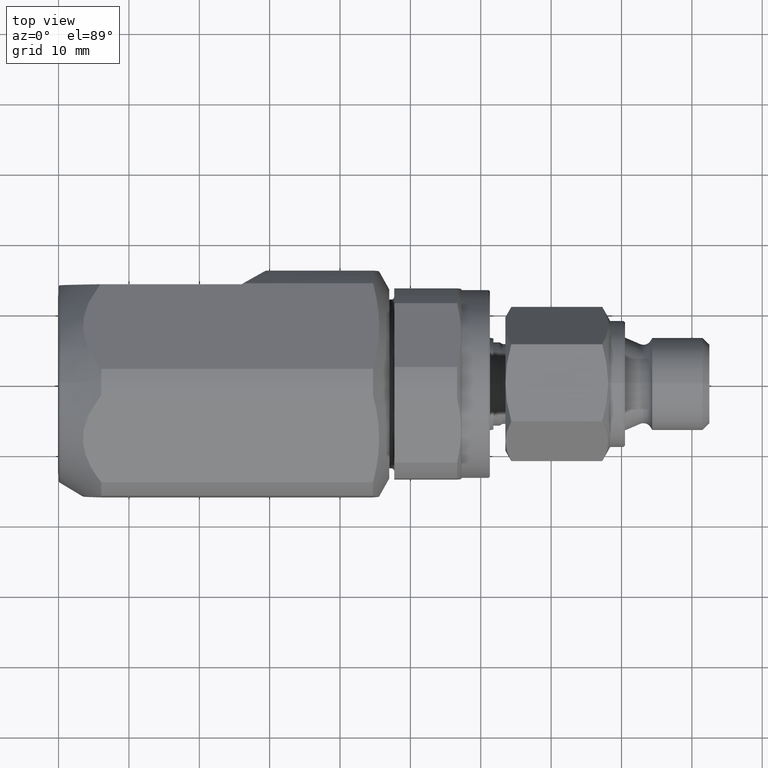
[diagram: clean part render]
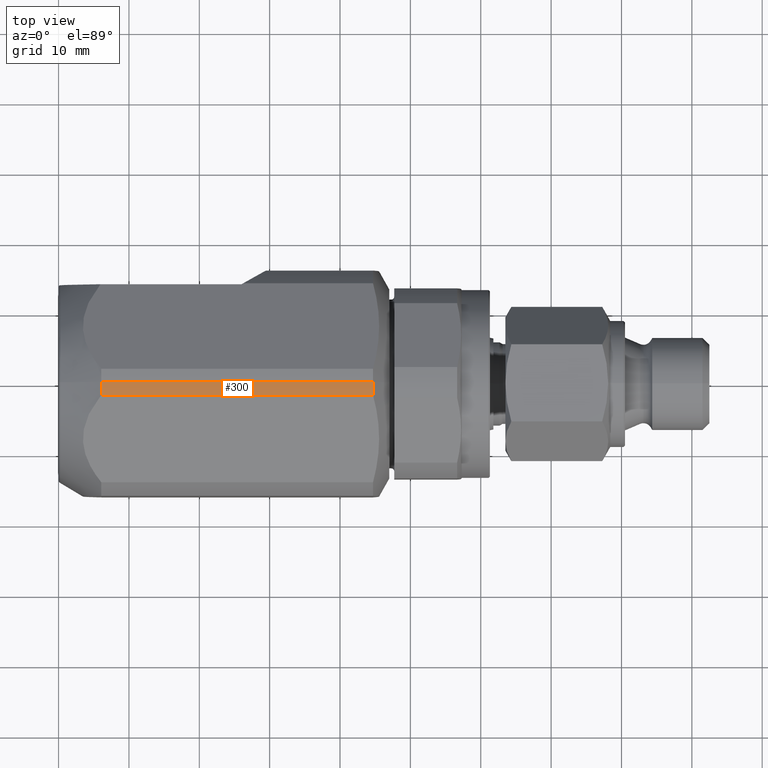
[diagram: same view with one face highlighted and labeled with its STEP entity id]
A machine part, top view. The second image highlights one B-rep face of the part: STEP entity #300.
In plain terms, the highlighted cylindrical surface (partial cylindrical patch) has radius 17.5 mm, axis along (-1, 0, 0).
Its self-contained STEP definition (entity closure, byte-faithful):
#35 = EDGE_CURVE ( 'NONE', #36, #307, #1168, .T. ) ;
#36 = VERTEX_POINT ( 'NONE', #1163 ) ;
#37 = ORIENTED_EDGE ( 'NONE', *, *, #38, .F. ) ;
#38 = EDGE_CURVE ( 'NONE', #304, #36, #1162, .T. ) ;
#297 = VERTEX_POINT ( 'NONE', #1897 ) ;
#300 = ADVANCED_FACE ( 'NONE', ( #1892 ), #1891, .T. ) ;
#301 = EDGE_LOOP ( 'NONE', ( #302, #305, #308, #37 ) ) ;
#302 = ORIENTED_EDGE ( 'NONE', *, *, #303, .T. ) ;
#303 = EDGE_CURVE ( 'NONE', #304, #297, #1917, .T. ) ;
#304 = VERTEX_POINT ( 'NONE', #1878 ) ;
#305 = ORIENTED_EDGE ( 'NONE', *, *, #306, .T. ) ;
#306 = EDGE_CURVE ( 'NONE', #297, #307, #1877, .T. ) ;
#307 = VERTEX_POINT ( 'NONE', #1873 ) ;
#308 = ORIENTED_EDGE ( 'NONE', *, *, #35, .F. ) ;
#1159 = DIRECTION ( 'NONE',  ( -1.000000000000000000, 0.0000000000000000000, 0.0000000000000000000 ) ) ;
#1160 = VECTOR ( 'NONE', #1159, 1000.000000000000000 ) ;
#1161 = CARTESIAN_POINT ( 'NONE',  ( 9.247099999999999700, -1.860985421095644900, 17.40076818024050100 ) ) ;
#1162 = LINE ( 'NONE', #1161, #1160 ) ;
#1163 = CARTESIAN_POINT ( 'NONE',  ( 6.062177826491050000, -1.860985421095654900, 17.40076818024050100 ) ) ;
#1164 = DIRECTION ( 'NONE',  ( 0.0000000000000000000, 0.0000000000000000000, 1.000000000000000000 ) ) ;
#1165 = DIRECTION ( 'NONE',  ( -1.000000000000000000, 0.0000000000000000000, 0.0000000000000000000 ) ) ;
#1166 = CARTESIAN_POINT ( 'NONE',  ( 6.062177826491050000, 0.0000000000000000000, 0.0000000000000000000 ) ) ;
#1167 = AXIS2_PLACEMENT_3D ( 'NONE', #1166, #1165, #1164 ) ;
#1168 = CIRCLE ( 'NONE', #1167, 17.50000000000000000 ) ;
#1873 = CARTESIAN_POINT ( 'NONE',  ( 6.062177826491050000, 2.143131898507868200E-015, 17.50000000000000000 ) ) ;
#1874 = DIRECTION ( 'NONE',  ( -1.000000000000000000, 0.0000000000000000000, 0.0000000000000000000 ) ) ;
#1875 = VECTOR ( 'NONE', #1874, 1000.000000000000000 ) ;
#1876 = CARTESIAN_POINT ( 'NONE',  ( 9.247099999999999700, 0.0000000000000000000, 17.50000000000000000 ) ) ;
#1877 = LINE ( 'NONE', #1876, #1875 ) ;
#1878 = CARTESIAN_POINT ( 'NONE',  ( 44.69059892324150200, -1.860985421095644900, 17.40076818024050100 ) ) ;
#1879 = DIRECTION ( 'NONE',  ( 0.0000000000000000000, 0.0000000000000000000, 1.000000000000000000 ) ) ;
#1880 = DIRECTION ( 'NONE',  ( -1.000000000000000000, 0.0000000000000000000, 0.0000000000000000000 ) ) ;
#1891 = CYLINDRICAL_SURFACE ( 'NONE', #1916, 17.50000000000000000 ) ;
#1892 = FACE_OUTER_BOUND ( 'NONE', #301, .T. ) ;
#1897 = CARTESIAN_POINT ( 'NONE',  ( 44.69059892324150200, 0.0000000000000000000, 17.50000000000000000 ) ) ;
#1911 = CARTESIAN_POINT ( 'NONE',  ( 44.69059892324150200, 0.0000000000000000000, 0.0000000000000000000 ) ) ;
#1912 = AXIS2_PLACEMENT_3D ( 'NONE', #1911, #1880, #1879 ) ;
#1913 = DIRECTION ( 'NONE',  ( 0.0000000000000000000, 0.0000000000000000000, 1.000000000000000000 ) ) ;
#1914 = DIRECTION ( 'NONE',  ( -1.000000000000000000, 0.0000000000000000000, 0.0000000000000000000 ) ) ;
#1915 = CARTESIAN_POINT ( 'NONE',  ( 9.247099999999999700, 0.0000000000000000000, 0.0000000000000000000 ) ) ;
#1916 = AXIS2_PLACEMENT_3D ( 'NONE', #1915, #1914, #1913 ) ;
#1917 = CIRCLE ( 'NONE', #1912, 17.50000000000000000 ) ;